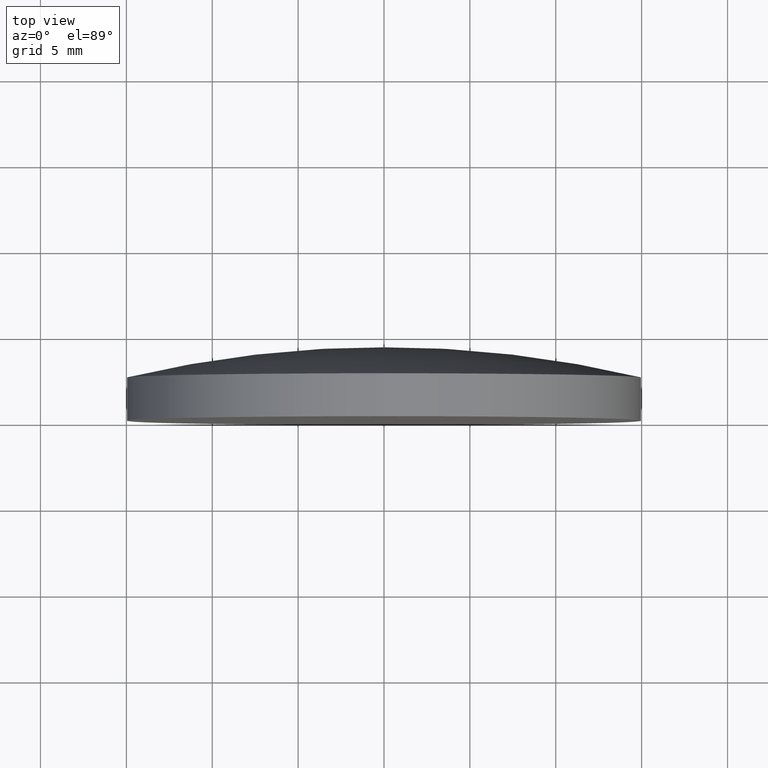
[diagram: clean part render]
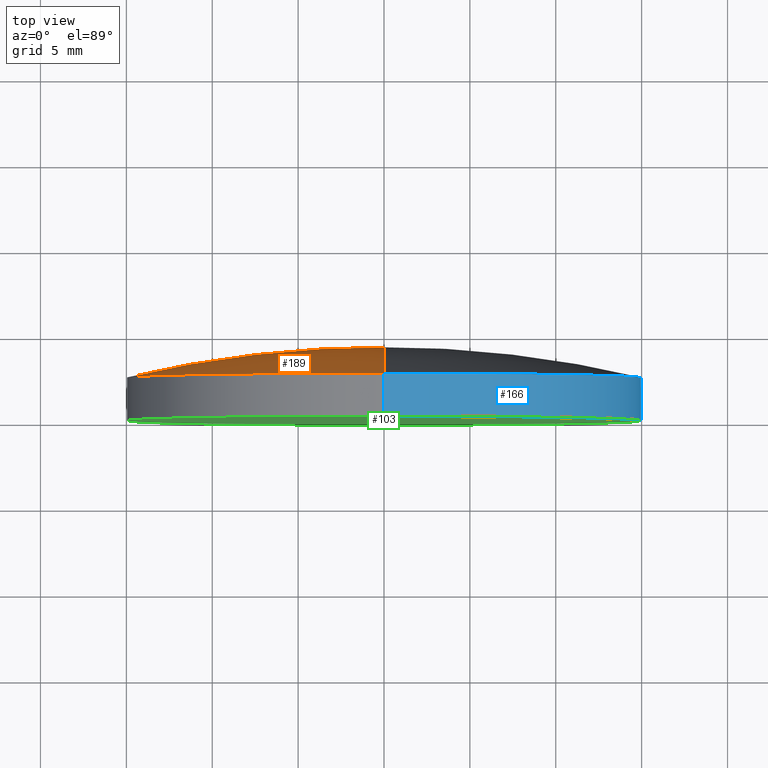
[diagram: same view with three faces highlighted in distinct colors, each labeled with its STEP entity id]
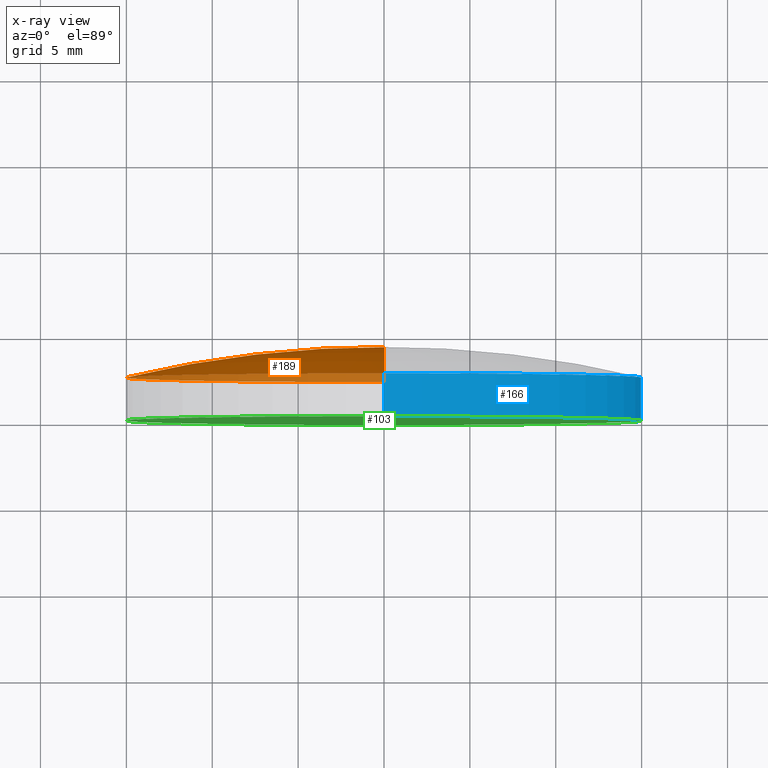
[diagram: x-ray of the same camera — body ghosted, the three highlighted faces saturated]
A machine part, top view with three faces highlighted in distinct colors.
The next image is the same camera in x-ray (body ghosted, the three faces saturated) — at least one of them is partly hidden behind the body in this view.
Their STEP definitions:

[orange] entity #189 — the highlighted toroidal blend (fillet) surface has major radius 0.0125 mm and minor (blend) radius 64.55 mm.
#1 = CARTESIAN_POINT ( 'NONE',  ( -1.527117152912117945E-18, -60.27999879552781692, 0.01246985787228902659 ) ) ;
#11 = AXIS2_PLACEMENT_3D ( 'NONE', #1, #18, #179 ) ;
#13 = CARTESIAN_POINT ( 'NONE',  ( 0.000000000000000000, -60.27999879552781692, -0.01246985787228902659 ) ) ;
#14 = CARTESIAN_POINT ( 'NONE',  ( 1.836970198721029589E-15, 2.499999999999996891, -15.00000000000000000 ) ) ;
#18 = DIRECTION ( 'NONE',  ( 1.000000000000000000, 0.000000000000000000, 1.224646799147353207E-16 ) ) ;
#24 = VERTEX_POINT ( 'NONE', #65 ) ;
#27 = AXIS2_PLACEMENT_3D ( 'NONE', #73, #134, #193 ) ;
#29 = ORIENTED_EDGE ( 'NONE', *, *, #186, .F. ) ;
#30 = TOROIDAL_SURFACE ( 'NONE', #27, -0.01246985787228902659, 64.54999999999998295 ) ;
#31 = DIRECTION ( 'NONE',  ( -1.000000000000000000, 0.000000000000000000, 0.000000000000000000 ) ) ;
#60 = CIRCLE ( 'NONE', #116, 64.54999999999998295 ) ;
#63 = DIRECTION ( 'NONE',  ( 0.000000000000000000, 0.000000000000000000, 1.000000000000000000 ) ) ;
#65 = CARTESIAN_POINT ( 'NONE',  ( 0.000000000000000000, 2.499999999999996891, 15.00000000000000000 ) ) ;
#73 = CARTESIAN_POINT ( 'NONE',  ( 0.000000000000000000, -60.27999879552781692, 0.000000000000000000 ) ) ;
#89 = AXIS2_PLACEMENT_3D ( 'NONE', #145, #197, #63 ) ;
#95 = CIRCLE ( 'NONE', #11, 64.54999999999998295 ) ;
#106 = EDGE_LOOP ( 'NONE', ( #29, #185, #171 ) ) ;
#112 = CARTESIAN_POINT ( 'NONE',  ( 0.000000000000000000, 4.269999999999999574, 0.000000000000000000 ) ) ;
#116 = AXIS2_PLACEMENT_3D ( 'NONE', #13, #31, #173 ) ;
#127 = VERTEX_POINT ( 'NONE', #14 ) ;
#132 = FACE_OUTER_BOUND ( 'NONE', #106, .T. ) ;
#134 = DIRECTION ( 'NONE',  ( -0.000000000000000000, 1.000000000000000000, -0.000000000000000000 ) ) ;
#137 = VERTEX_POINT ( 'NONE', #112 ) ;
#141 = EDGE_CURVE ( 'NONE', #24, #137, #60, .T. ) ;
#145 = CARTESIAN_POINT ( 'NONE',  ( 0.000000000000000000, 2.499999999999998224, 0.000000000000000000 ) ) ;
#170 = EDGE_CURVE ( 'NONE', #127, #24, #176, .T. ) ;
#171 = ORIENTED_EDGE ( 'NONE', *, *, #141, .T. ) ;
#173 = DIRECTION ( 'NONE',  ( 0.000000000000000000, 0.000000000000000000, 1.000000000000000000 ) ) ;
#176 = CIRCLE ( 'NONE', #89, 15.00000000000000000 ) ;
#179 = DIRECTION ( 'NONE',  ( 1.224646799147352961E-16, 0.000000000000000000, -1.000000000000000000 ) ) ;
#185 = ORIENTED_EDGE ( 'NONE', *, *, #170, .T. ) ;
#186 = EDGE_CURVE ( 'NONE', #127, #137, #95, .T. ) ;
#189 = ADVANCED_FACE ( 'NONE', ( #132 ), #30, .T. ) ;
#193 = DIRECTION ( 'NONE',  ( 0.000000000000000000, 0.000000000000000000, 1.000000000000000000 ) ) ;
#197 = DIRECTION ( 'NONE',  ( -0.000000000000000000, 1.000000000000000000, -0.000000000000000000 ) ) ;

[blue] entity #166 — the highlighted cylindrical surface (partial cylindrical patch) has radius 15 mm, axis along (-0, 1, -0).
#5 = CARTESIAN_POINT ( 'NONE',  ( 1.836970198721029589E-15, -1.734723475976807094E-15, -15.00000000000000000 ) ) ;
#6 = EDGE_CURVE ( 'NONE', #97, #24, #102, .T. ) ;
#14 = CARTESIAN_POINT ( 'NONE',  ( 1.836970198721029589E-15, 2.499999999999996891, -15.00000000000000000 ) ) ;
#24 = VERTEX_POINT ( 'NONE', #65 ) ;
#35 = CYLINDRICAL_SURFACE ( 'NONE', #163, 15.00000000000000000 ) ;
#36 = FACE_OUTER_BOUND ( 'NONE', #93, .T. ) ;
#46 = DIRECTION ( 'NONE',  ( 0.000000000000000000, 0.000000000000000000, 1.000000000000000000 ) ) ;
#50 = DIRECTION ( 'NONE',  ( -0.000000000000000000, 1.000000000000000000, -0.000000000000000000 ) ) ;
#51 = AXIS2_PLACEMENT_3D ( 'NONE', #156, #50, #126 ) ;
#52 = EDGE_CURVE ( 'NONE', #97, #190, #76, .T. ) ;
#65 = CARTESIAN_POINT ( 'NONE',  ( 0.000000000000000000, 2.499999999999996891, 15.00000000000000000 ) ) ;
#67 = VECTOR ( 'NONE', #81, 1000.000000000000000 ) ;
#75 = AXIS2_PLACEMENT_3D ( 'NONE', #199, #159, #46 ) ;
#76 = CIRCLE ( 'NONE', #75, 15.00000000000000000 ) ;
#79 = CARTESIAN_POINT ( 'NONE',  ( 0.000000000000000000, 4.269999999999999574, 15.00000000000000000 ) ) ;
#81 = DIRECTION ( 'NONE',  ( -0.000000000000000000, 1.000000000000000000, -0.000000000000000000 ) ) ;
#87 = DIRECTION ( 'NONE',  ( 0.000000000000000000, 0.000000000000000000, 1.000000000000000000 ) ) ;
#93 = EDGE_LOOP ( 'NONE', ( #198, #160, #142, #129 ) ) ;
#97 = VERTEX_POINT ( 'NONE', #114 ) ;
#102 = LINE ( 'NONE', #79, #187 ) ;
#110 = CARTESIAN_POINT ( 'NONE',  ( 1.836970198721029589E-15, 4.269999999999999574, -15.00000000000000000 ) ) ;
#114 = CARTESIAN_POINT ( 'NONE',  ( 0.000000000000000000, -1.734723475976807094E-15, 15.00000000000000000 ) ) ;
#124 = DIRECTION ( 'NONE',  ( -0.000000000000000000, 1.000000000000000000, -0.000000000000000000 ) ) ;
#126 = DIRECTION ( 'NONE',  ( 0.000000000000000000, 0.000000000000000000, 1.000000000000000000 ) ) ;
#127 = VERTEX_POINT ( 'NONE', #14 ) ;
#129 = ORIENTED_EDGE ( 'NONE', *, *, #6, .F. ) ;
#131 = CIRCLE ( 'NONE', #51, 15.00000000000000000 ) ;
#136 = EDGE_CURVE ( 'NONE', #190, #127, #182, .T. ) ;
#140 = CARTESIAN_POINT ( 'NONE',  ( 0.000000000000000000, 4.269999999999999574, 0.000000000000000000 ) ) ;
#142 = ORIENTED_EDGE ( 'NONE', *, *, #157, .F. ) ;
#156 = CARTESIAN_POINT ( 'NONE',  ( 0.000000000000000000, 2.499999999999998224, 0.000000000000000000 ) ) ;
#157 = EDGE_CURVE ( 'NONE', #24, #127, #131, .T. ) ;
#159 = DIRECTION ( 'NONE',  ( -0.000000000000000000, 1.000000000000000000, -0.000000000000000000 ) ) ;
#160 = ORIENTED_EDGE ( 'NONE', *, *, #136, .T. ) ;
#162 = DIRECTION ( 'NONE',  ( -0.000000000000000000, 1.000000000000000000, -0.000000000000000000 ) ) ;
#163 = AXIS2_PLACEMENT_3D ( 'NONE', #140, #162, #87 ) ;
#166 = ADVANCED_FACE ( 'NONE', ( #36 ), #35, .T. ) ;
#182 = LINE ( 'NONE', #110, #67 ) ;
#187 = VECTOR ( 'NONE', #124, 1000.000000000000000 ) ;
#190 = VERTEX_POINT ( 'NONE', #5 ) ;
#198 = ORIENTED_EDGE ( 'NONE', *, *, #52, .T. ) ;
#199 = CARTESIAN_POINT ( 'NONE',  ( 0.000000000000000000, -1.734723475976807094E-15, 0.000000000000000000 ) ) ;

[green] entity #103 — the highlighted planar face has unit normal (0, -1, 0).
#5 = CARTESIAN_POINT ( 'NONE',  ( 1.836970198721029589E-15, -1.734723475976807094E-15, -15.00000000000000000 ) ) ;
#8 = AXIS2_PLACEMENT_3D ( 'NONE', #77, #139, #15 ) ;
#15 = DIRECTION ( 'NONE',  ( 0.000000000000000000, 0.000000000000000000, 1.000000000000000000 ) ) ;
#46 = DIRECTION ( 'NONE',  ( 0.000000000000000000, 0.000000000000000000, 1.000000000000000000 ) ) ;
#49 = CARTESIAN_POINT ( 'NONE',  ( 0.000000000000000000, -9.184850993605147944E-16, 0.000000000000000000 ) ) ;
#52 = EDGE_CURVE ( 'NONE', #97, #190, #76, .T. ) ;
#58 = EDGE_CURVE ( 'NONE', #190, #97, #85, .T. ) ;
#61 = ORIENTED_EDGE ( 'NONE', *, *, #58, .F. ) ;
#66 = DIRECTION ( 'NONE',  ( 0.000000000000000000, -0.000000000000000000, -1.000000000000000000 ) ) ;
#74 = ORIENTED_EDGE ( 'NONE', *, *, #52, .F. ) ;
#75 = AXIS2_PLACEMENT_3D ( 'NONE', #199, #159, #46 ) ;
#76 = CIRCLE ( 'NONE', #75, 15.00000000000000000 ) ;
#77 = CARTESIAN_POINT ( 'NONE',  ( 0.000000000000000000, -1.734723475976807094E-15, 0.000000000000000000 ) ) ;
#83 = PLANE ( 'NONE',  #133 ) ;
#85 = CIRCLE ( 'NONE', #8, 15.00000000000000000 ) ;
#97 = VERTEX_POINT ( 'NONE', #114 ) ;
#103 = ADVANCED_FACE ( 'NONE', ( #195 ), #83, .T. ) ;
#114 = CARTESIAN_POINT ( 'NONE',  ( 0.000000000000000000, -1.734723475976807094E-15, 15.00000000000000000 ) ) ;
#123 = EDGE_LOOP ( 'NONE', ( #74, #61 ) ) ;
#133 = AXIS2_PLACEMENT_3D ( 'NONE', #49, #144, #66 ) ;
#139 = DIRECTION ( 'NONE',  ( -0.000000000000000000, 1.000000000000000000, -0.000000000000000000 ) ) ;
#144 = DIRECTION ( 'NONE',  ( 0.000000000000000000, -1.000000000000000000, 0.000000000000000000 ) ) ;
#159 = DIRECTION ( 'NONE',  ( -0.000000000000000000, 1.000000000000000000, -0.000000000000000000 ) ) ;
#190 = VERTEX_POINT ( 'NONE', #5 ) ;
#195 = FACE_OUTER_BOUND ( 'NONE', #123, .T. ) ;
#199 = CARTESIAN_POINT ( 'NONE',  ( 0.000000000000000000, -1.734723475976807094E-15, 0.000000000000000000 ) ) ;